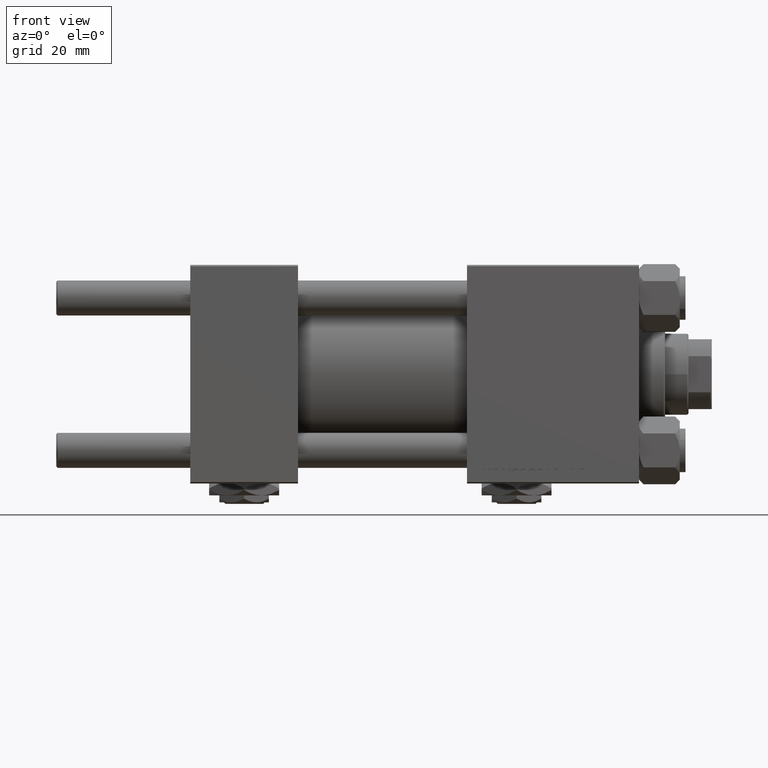
[diagram: clean part render]
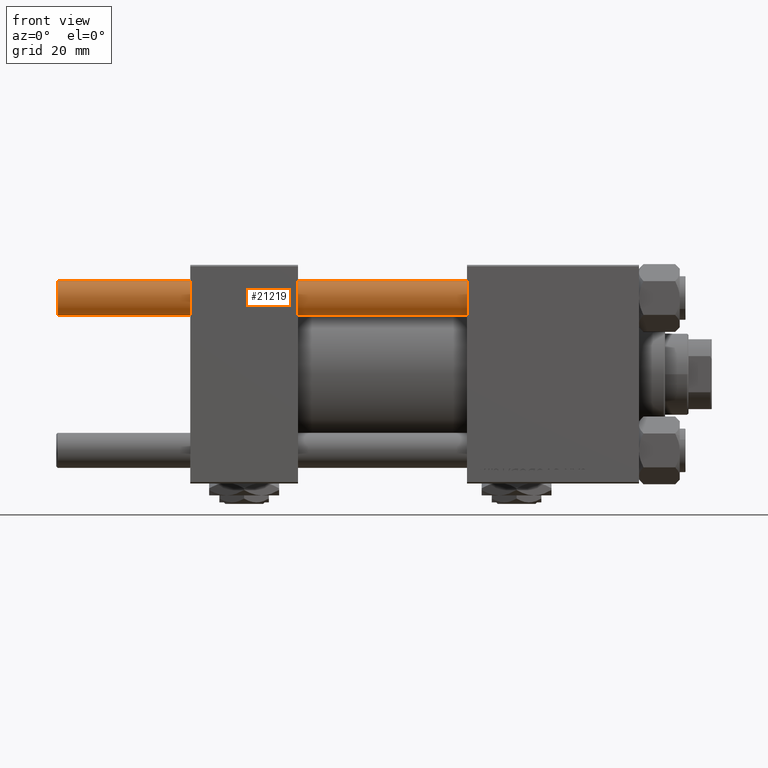
[diagram: same view with one face highlighted and labeled with its STEP entity id]
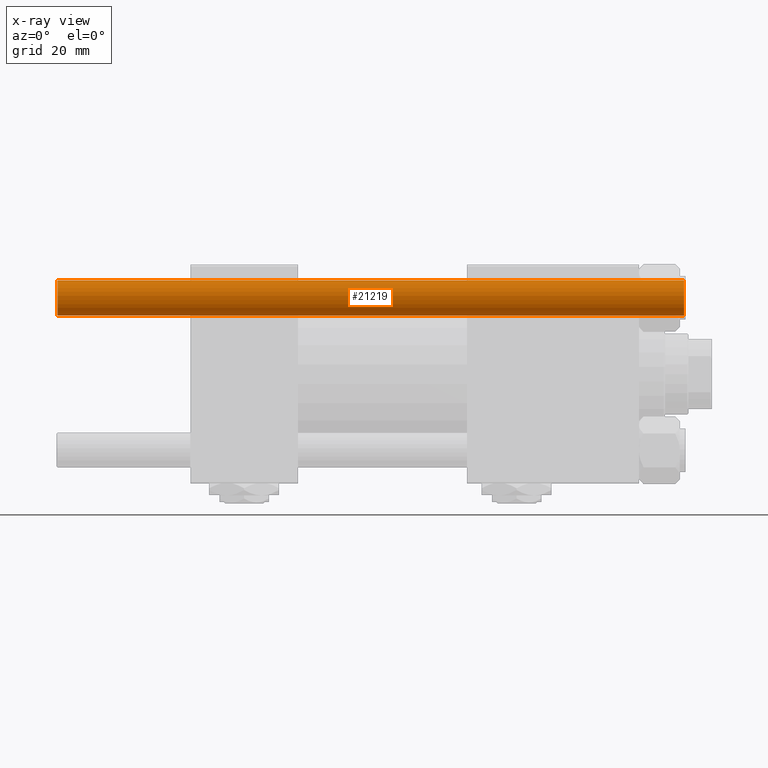
[diagram: x-ray of the same camera — body ghosted, the highlighted face saturated]
A machine part, front view. The second image highlights one B-rep face of the part: STEP entity #21219.
The next image is the same camera in x-ray: the body ghosted, the highlighted face saturated — about 0% of this face is hidden behind the body in this view.
In plain terms, the highlighted cylindrical surface (edge-blend (fillet) strip) has radius 6 mm, axis along (1, -0, 0).
Its self-contained STEP definition (entity closure, byte-faithful):
#1624 = ORIENTED_EDGE ( 'NONE', *, *, #41456, .T. ) ;
#3929 = AXIS2_PLACEMENT_3D ( 'NONE', #11152, #6961, #39397 ) ;
#5194 = CARTESIAN_POINT ( 'NONE',  ( -6.000000000000000888, 0.000000000000000000, 215.5000000000000284 ) ) ;
#5266 = DIRECTION ( 'NONE',  ( -0.000000000000000000, -0.000000000000000000, -1.000000000000000000 ) ) ;
#6870 = AXIS2_PLACEMENT_3D ( 'NONE', #40206, #36017, #12201 ) ;
#6961 = DIRECTION ( 'NONE',  ( -0.000000000000000000, -0.000000000000000000, 1.000000000000000000 ) ) ;
#8712 = VECTOR ( 'NONE', #22821, 1000.000000000000000 ) ;
#11152 = CARTESIAN_POINT ( 'NONE',  ( 0.000000000000000000, 0.000000000000000000, 0.5000000000000004441 ) ) ;
#11658 = FACE_OUTER_BOUND ( 'NONE', #25986, .T. ) ;
#11934 = CARTESIAN_POINT ( 'NONE',  ( 6.000000000000000888, 7.347880794884120722E-16, 0.5000000000000004441 ) ) ;
#12201 = DIRECTION ( 'NONE',  ( 1.000000000000000000, 0.000000000000000000, 0.000000000000000000 ) ) ;
#16609 = AXIS2_PLACEMENT_3D ( 'NONE', #35976, #39659, #39406 ) ;
#17698 = EDGE_CURVE ( 'NONE', #25239, #18262, #24835, .T. ) ;
#18262 = VERTEX_POINT ( 'NONE', #28134 ) ;
#18400 = ORIENTED_EDGE ( 'NONE', *, *, #50723, .F. ) ;
#21219 = ADVANCED_FACE ( 'NONE', ( #11658 ), #47499, .T. ) ;
#22821 = DIRECTION ( 'NONE',  ( -0.000000000000000000, -0.000000000000000000, -1.000000000000000000 ) ) ;
#24835 = CIRCLE ( 'NONE', #3929, 6.000000000000000888 ) ;
#25239 = VERTEX_POINT ( 'NONE', #11934 ) ;
#25986 = EDGE_LOOP ( 'NONE', ( #29501, #1624, #26950, #18400 ) ) ;
#26950 = ORIENTED_EDGE ( 'NONE', *, *, #17698, .T. ) ;
#28134 = CARTESIAN_POINT ( 'NONE',  ( -6.000000000000000888, 0.000000000000000000, 0.5000000000000004441 ) ) ;
#28298 = CARTESIAN_POINT ( 'NONE',  ( -6.000000000000000888, 0.000000000000000000, 216.0000000000000000 ) ) ;
#29501 = ORIENTED_EDGE ( 'NONE', *, *, #49084, .T. ) ;
#35976 = CARTESIAN_POINT ( 'NONE',  ( 0.000000000000000000, 0.000000000000000000, 216.0000000000000000 ) ) ;
#36017 = DIRECTION ( 'NONE',  ( 0.000000000000000000, 0.000000000000000000, -1.000000000000000000 ) ) ;
#39397 = DIRECTION ( 'NONE',  ( 1.000000000000000000, 0.000000000000000000, 0.000000000000000000 ) ) ;
#39406 = DIRECTION ( 'NONE',  ( -1.000000000000000000, 0.000000000000000000, 0.000000000000000000 ) ) ;
#39659 = DIRECTION ( 'NONE',  ( -0.000000000000000000, -0.000000000000000000, -1.000000000000000000 ) ) ;
#40091 = LINE ( 'NONE', #28298, #47062 ) ;
#40206 = CARTESIAN_POINT ( 'NONE',  ( 0.000000000000000000, 0.000000000000000000, 215.5000000000000284 ) ) ;
#41456 = EDGE_CURVE ( 'NONE', #49068, #25239, #46882, .T. ) ;
#43650 = CIRCLE ( 'NONE', #6870, 6.000000000000000888 ) ;
#43708 = VERTEX_POINT ( 'NONE', #5194 ) ;
#43868 = CARTESIAN_POINT ( 'NONE',  ( 6.000000000000000888, 7.347880794884120722E-16, 215.5000000000000284 ) ) ;
#46882 = LINE ( 'NONE', #50303, #8712 ) ;
#47062 = VECTOR ( 'NONE', #5266, 1000.000000000000000 ) ;
#47499 = CYLINDRICAL_SURFACE ( 'NONE', #16609, 6.000000000000000888 ) ;
#49068 = VERTEX_POINT ( 'NONE', #43868 ) ;
#49084 = EDGE_CURVE ( 'NONE', #43708, #49068, #43650, .T. ) ;
#50303 = CARTESIAN_POINT ( 'NONE',  ( 6.000000000000000888, 7.347880794884120722E-16, 216.0000000000000000 ) ) ;
#50723 = EDGE_CURVE ( 'NONE', #43708, #18262, #40091, .T. ) ;